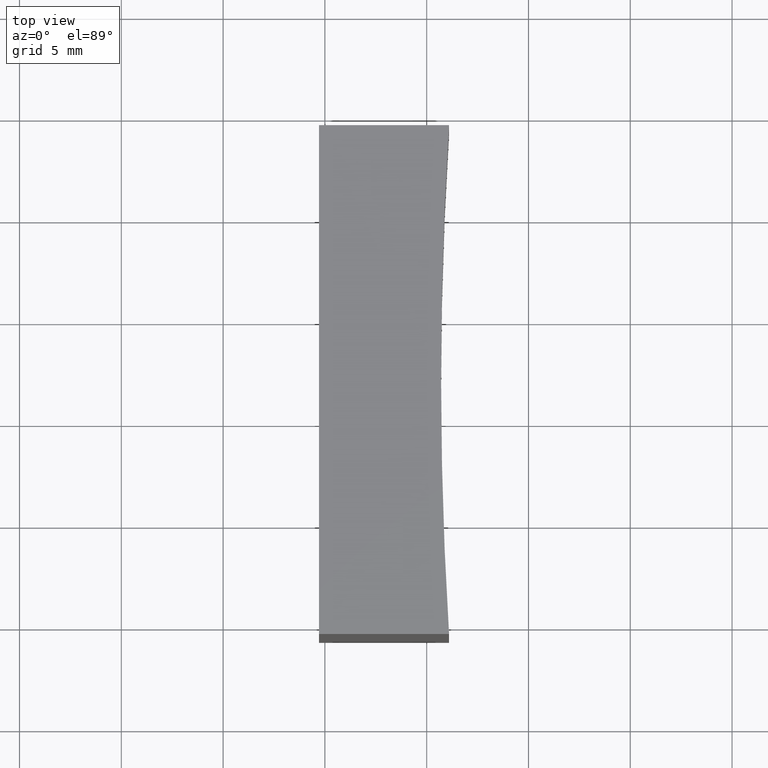
[diagram: clean part render]
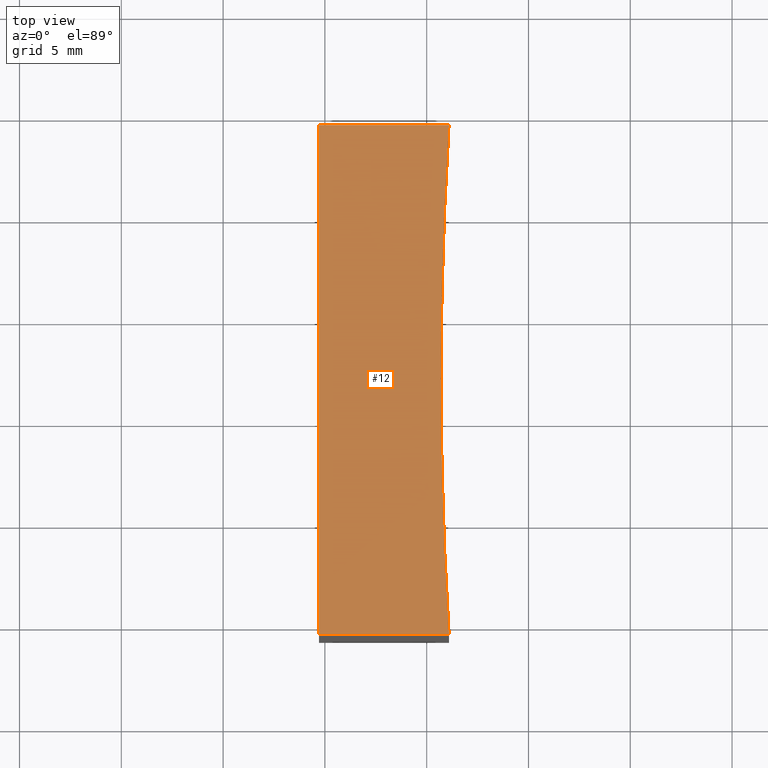
[diagram: same view with one face highlighted and labeled with its STEP entity id]
A machine part, top view. The second image highlights one B-rep face of the part: STEP entity #12.
In plain terms, the highlighted planar face has unit normal (0, 0, 1).
Its self-contained STEP definition (entity closure, byte-faithful):
#1 = DIRECTION ( 'NONE',  ( -1.000000000000000000, -0.0000000000000000000, -0.0000000000000000000 ) ) ;
#12 = ADVANCED_FACE ( 'NONE', ( #89 ), #219, .T. ) ;
#15 = AXIS2_PLACEMENT_3D ( 'NONE', #197, #218, #196 ) ;
#20 = LINE ( 'NONE', #48, #32 ) ;
#32 = VECTOR ( 'NONE', #114, 1000.000000000000000 ) ;
#33 = EDGE_LOOP ( 'NONE', ( #138, #136, #153, #158, #176 ) ) ;
#34 = EDGE_CURVE ( 'NONE', #40, #53, #187, .T. ) ;
#40 = VERTEX_POINT ( 'NONE', #139 ) ;
#41 = EDGE_CURVE ( 'NONE', #53, #54, #57, .T. ) ;
#48 = CARTESIAN_POINT ( 'NONE',  ( 291.0981428478888800, 54.35792926776714000, 25.00000000000000000 ) ) ;
#53 = VERTEX_POINT ( 'NONE', #63 ) ;
#54 = VERTEX_POINT ( 'NONE', #202 ) ;
#56 = VECTOR ( 'NONE', #131, 1000.000000000000000 ) ;
#57 = CIRCLE ( 'NONE', #99, 200.0000000000000000 ) ;
#63 = CARTESIAN_POINT ( 'NONE',  ( 290.7071356312802700, 66.85792926776710500, 25.00000000000000000 ) ) ;
#88 = DIRECTION ( 'NONE',  ( 1.000000000000000000, 0.0000000000000000000, -0.0000000000000000000 ) ) ;
#89 = FACE_OUTER_BOUND ( 'NONE', #33, .T. ) ;
#98 = CARTESIAN_POINT ( 'NONE',  ( 284.7071356312820900, 54.35792926776707600, 25.00000000000000000 ) ) ;
#99 = AXIS2_PLACEMENT_3D ( 'NONE', #144, #125, #222 ) ;
#106 = VERTEX_POINT ( 'NONE', #223 ) ;
#114 = DIRECTION ( 'NONE',  ( 1.000000000000000000, 9.771549775893063200E-015, -0.0000000000000000000 ) ) ;
#117 = LINE ( 'NONE', #98, #56 ) ;
#125 = DIRECTION ( 'NONE',  ( -0.0000000000000000000, -0.0000000000000000000, -1.000000000000000000 ) ) ;
#131 = DIRECTION ( 'NONE',  ( -0.0000000000000000000, -1.000000000000000000, -0.0000000000000000000 ) ) ;
#136 = ORIENTED_EDGE ( 'NONE', *, *, #203, .T. ) ;
#138 = ORIENTED_EDGE ( 'NONE', *, *, #198, .T. ) ;
#139 = CARTESIAN_POINT ( 'NONE',  ( 291.0981428478888800, 54.35792926776720400, 25.00000000000000000 ) ) ;
#142 = EDGE_CURVE ( 'NONE', #54, #106, #154, .T. ) ;
#144 = CARTESIAN_POINT ( 'NONE',  ( 490.7071356312802700, 66.85792926776710500, 25.00000000000000000 ) ) ;
#147 = CARTESIAN_POINT ( 'NONE',  ( 284.7071356312820900, 54.35792926776707600, 25.00000000000000000 ) ) ;
#153 = ORIENTED_EDGE ( 'NONE', *, *, #34, .T. ) ;
#154 = LINE ( 'NONE', #204, #157 ) ;
#157 = VECTOR ( 'NONE', #1, 1000.000000000000000 ) ;
#158 = ORIENTED_EDGE ( 'NONE', *, *, #41, .T. ) ;
#160 = DIRECTION ( 'NONE',  ( 0.0000000000000000000, 0.0000000000000000000, 1.000000000000000000 ) ) ;
#176 = ORIENTED_EDGE ( 'NONE', *, *, #142, .T. ) ;
#187 = CIRCLE ( 'NONE', #15, 200.0000000000000000 ) ;
#194 = VERTEX_POINT ( 'NONE', #147 ) ;
#196 = DIRECTION ( 'NONE',  ( 1.000000000000000000, 0.0000000000000000000, 0.0000000000000000000 ) ) ;
#197 = CARTESIAN_POINT ( 'NONE',  ( 490.7071356312802700, 66.85792926776710500, 25.00000000000000000 ) ) ;
#198 = EDGE_CURVE ( 'NONE', #106, #194, #117, .T. ) ;
#202 = CARTESIAN_POINT ( 'NONE',  ( 291.0981428478888800, 79.35792926776707600, 25.00000000000000000 ) ) ;
#203 = EDGE_CURVE ( 'NONE', #194, #40, #20, .T. ) ;
#204 = CARTESIAN_POINT ( 'NONE',  ( 284.7071356312820900, 79.35792926776707600, 25.00000000000000000 ) ) ;
#212 = AXIS2_PLACEMENT_3D ( 'NONE', #215, #160, #88 ) ;
#215 = CARTESIAN_POINT ( 'NONE',  ( 490.7071356312802700, 66.85792926776710500, 25.00000000000000000 ) ) ;
#218 = DIRECTION ( 'NONE',  ( -0.0000000000000000000, -0.0000000000000000000, -1.000000000000000000 ) ) ;
#219 = PLANE ( 'NONE',  #212 ) ;
#222 = DIRECTION ( 'NONE',  ( 1.000000000000000000, 0.0000000000000000000, 0.0000000000000000000 ) ) ;
#223 = CARTESIAN_POINT ( 'NONE',  ( 284.7071356312820900, 79.35792926776707600, 25.00000000000000000 ) ) ;